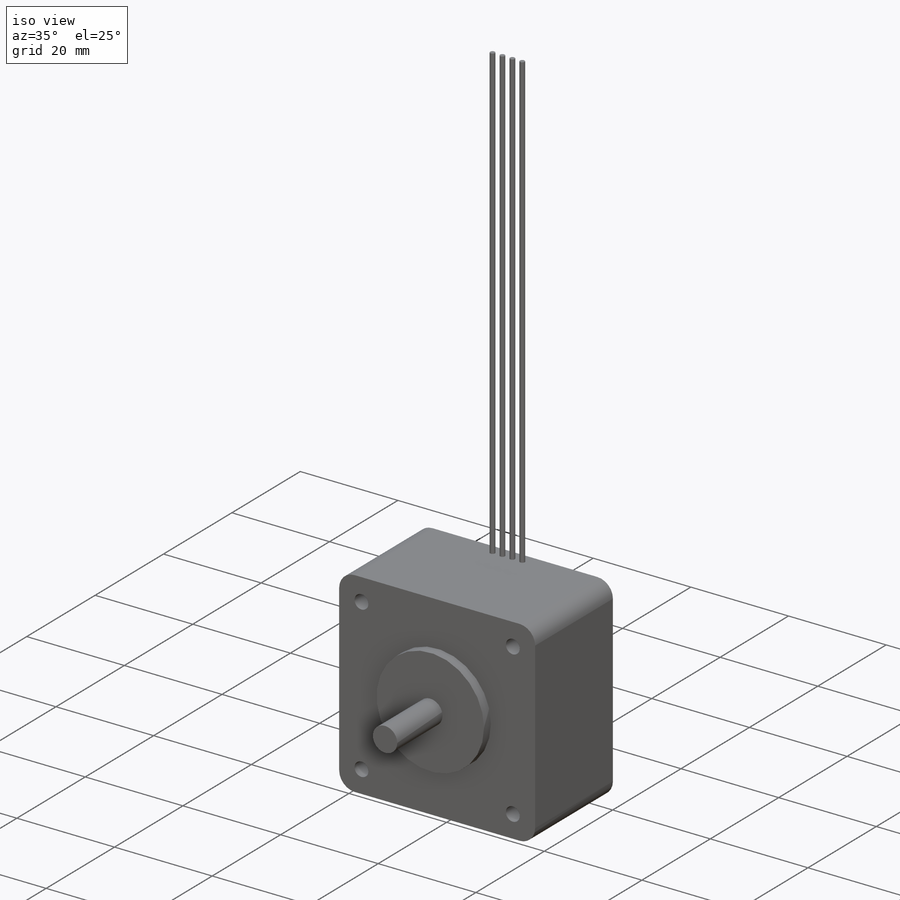
[diagram: iso view]
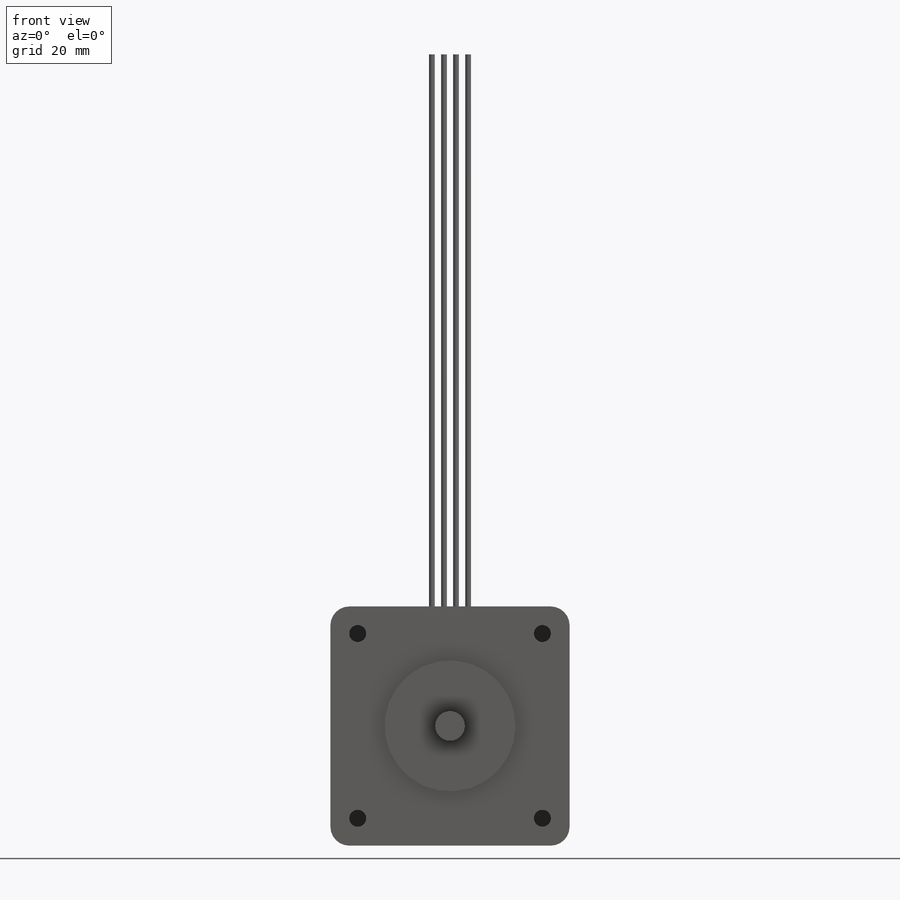
[diagram: front view]
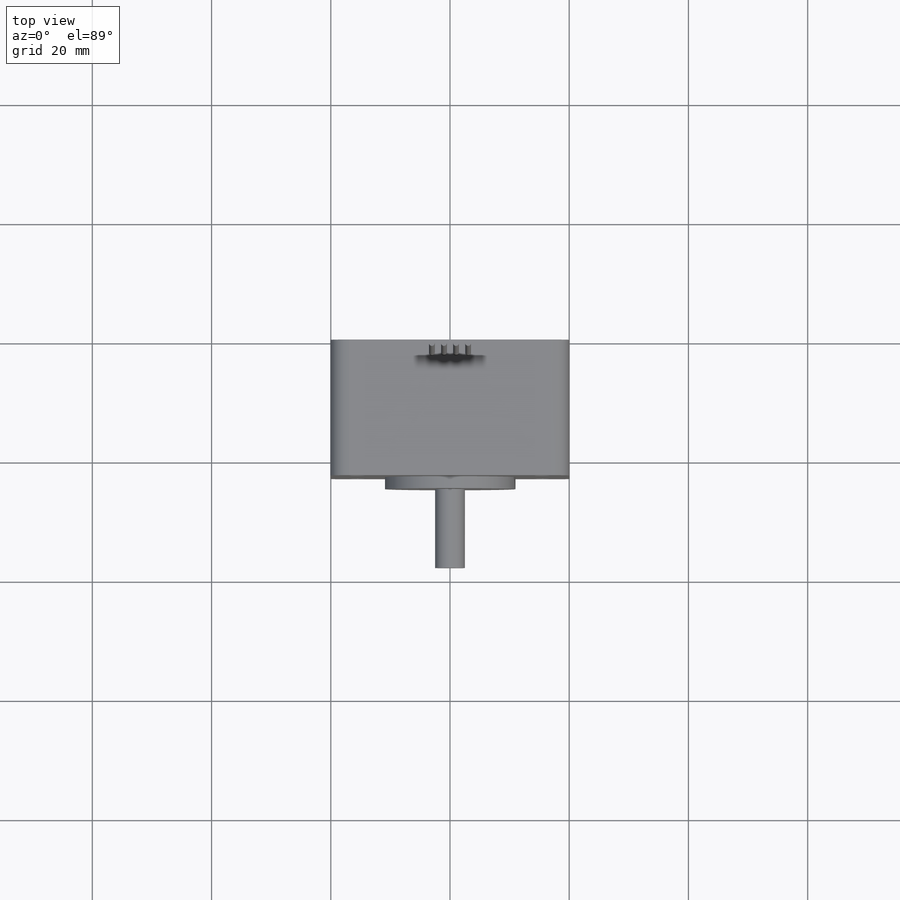
[diagram: top view]
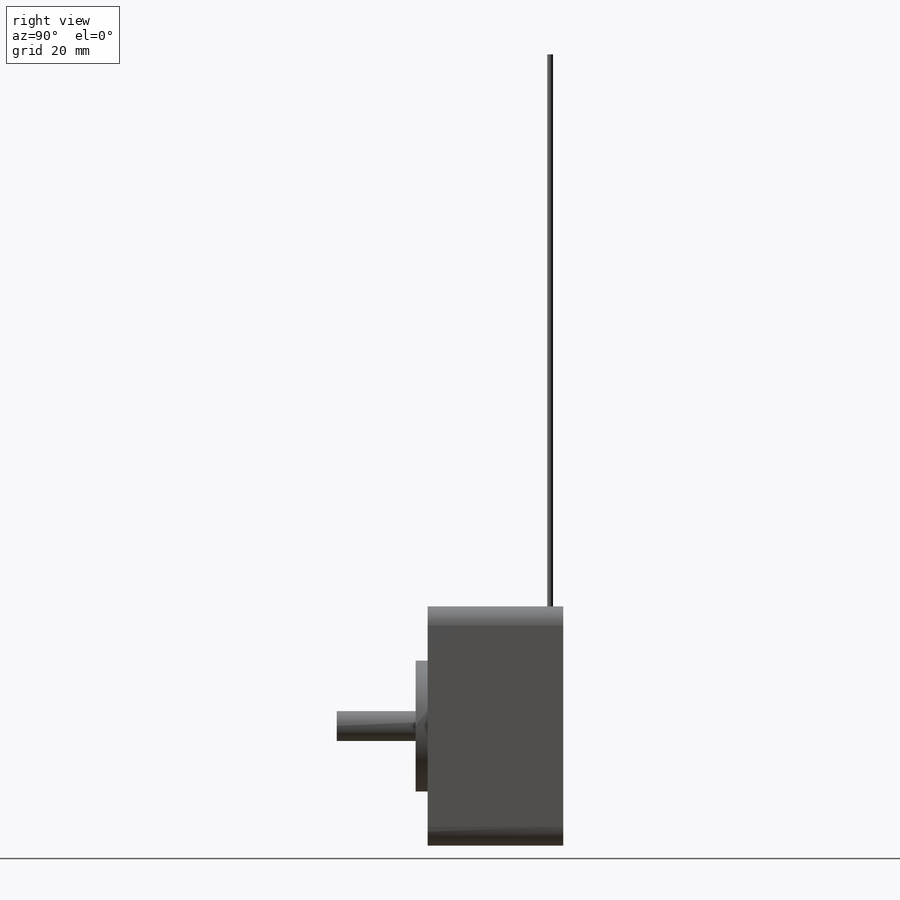
[diagram: right view]
SOLIDWORKS PART (.sldprt)
format: sldprt  version: not decoded by parser v0  size: 248,320 bytes
history: native  units: mm
features: sketch x14, revolve x5, hole x4, fillet x4, plane x2, material x1, extrude x1 (+16 scaffold rows collapsed)
feature tree (47):
  scaffold x16  (default folders/planes/origin — collapsed)
  material  "Plain Carbon Steel"
  plane  "Plane1"  Offset=22.7584mm
  sketch  "Sketch1"
  extrude  "Boss-Extrude1"  Depth=22.7584mm
  plane  "Plane2"
  sketch  "Sketch2"
  revolve  "Revolve1"  Angle=360deg
  sketch  "Sketch3"
  revolve  "Revolve2"  Angle=360deg
  sketch  "Sketch4"
  revolve  "Revolve3"  Angle=360deg
  sketch  "Sketch5"
  revolve  "Revolve4"  Angle=360deg
  sketch  "Sketch6"
  revolve  "Revolve5"  Angle=360deg
  hole  "Hole1"  Diameter=2.8448mm Depth=21.9964mm
  sketch  "Sketch8"
  sketch  "Sketch7"  dims[Diameter=2.8448mm Depth=21.9964mm]
  hole  "Hole2"  Diameter=2.8448mm Depth=21.9964mm
  sketch  "Sketch10"
  sketch  "Sketch9"  dims[Diameter=2.8448mm Depth=21.9964mm]
  hole  "Hole3"  Diameter=2.8448mm Depth=21.9964mm
  sketch  "Sketch12"
  sketch  "Sketch11"  dims[Diameter=2.8448mm Depth=21.9964mm]
  hole  "Hole4"  Diameter=2.8448mm Depth=21.9964mm
  sketch  "Sketch14"
  sketch  "Sketch13"  dims[Diameter=2.8448mm Depth=21.9964mm]
  fillet  "Fillet1"  Radius=3.175mm
  fillet  "Fillet2"  Radius=3.175mm
  fillet  "Fillet3"  Radius=3.175mm
  fillet  "Fillet4"  Radius=3.175mm
decode coverage: 18 of 28 modeling features carry decoded parameters
summary: Diameter pulled from absorbed wizard sketch
note: suppression state not decoded; provenance and decode notes live in map.json
